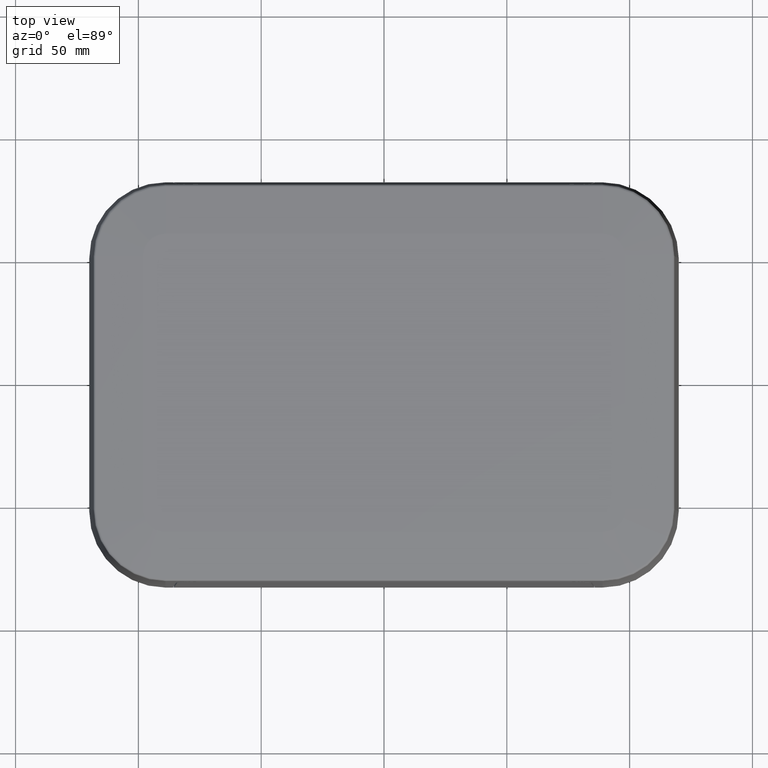
[diagram: clean part render]
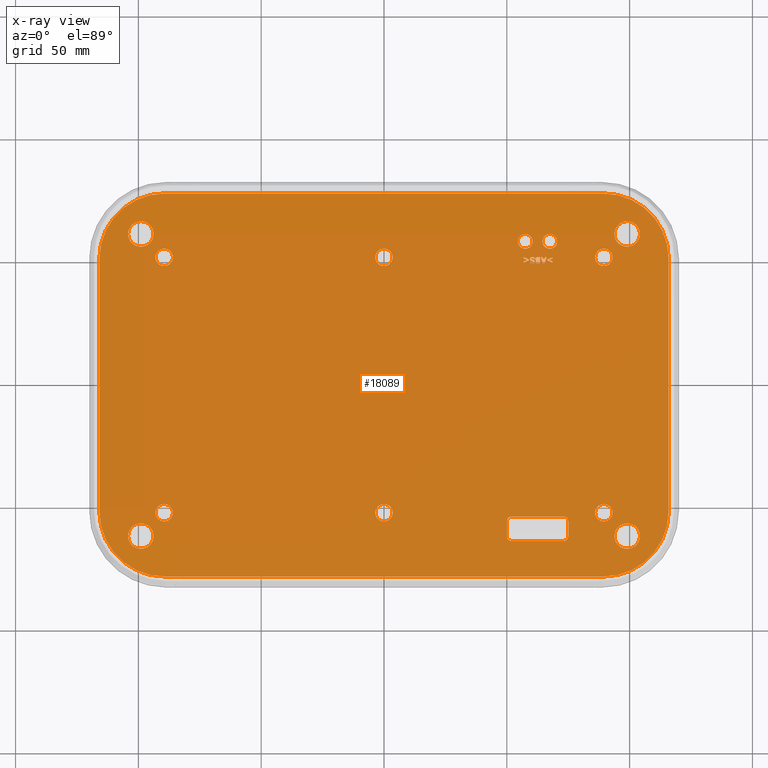
[diagram: x-ray — body ghosted, one internal face saturated and labeled with its STEP entity id]
A machine part, top view, then the same camera in x-ray: the body is ghosted and one INTERNAL B-rep face — a face not visible from any outside direction — is saturated and labeled: STEP entity #18089.
In plain terms, the highlighted planar face has unit normal (0, 0, 1).
Its self-contained STEP definition (entity closure, byte-faithful):
#15321=CARTESIAN_POINT('',(61.350081037277107,51.896677534429514,-3.5));
#15322=VERTEX_POINT('',#15321);
#15323=CARTESIAN_POINT('',(61.350081037277121,51.301053547395483,-3.5));
#15324=VERTEX_POINT('',#15323);
#15325=CARTESIAN_POINT('',(61.350081037277121,51.896677534429514,-3.5));
#15326=DIRECTION('',(0.0,-1.0,0.0));
#15327=VECTOR('',#15326,0.595623987034031);
#15328=LINE('',#15325,#15327);
#15329=EDGE_CURVE('',#15322,#15324,#15328,.T.);
#15361=CARTESIAN_POINT('',(61.293354943273869,51.301053547395483,-3.5));
#15362=VERTEX_POINT('',#15361);
#15363=CARTESIAN_POINT('',(61.350081037277121,51.301053547395483,-3.5));
#15364=DIRECTION('',(-1.0,0.0,0.0));
#15365=VECTOR('',#15364,0.056726094003253);
#15366=LINE('',#15363,#15365);
#15367=EDGE_CURVE('',#15324,#15362,#15366,.T.);
#15396=CARTESIAN_POINT('',(60.440437601296566,51.633306383700187,-3.5));
#15397=VERTEX_POINT('',#15396);
#15398=CARTESIAN_POINT('',(61.293354943273869,51.301053547395483,-3.5));
#15399=CARTESIAN_POINT('',(61.104943273905967,51.461102169761773,-3.5));
#15400=CARTESIAN_POINT('',(60.653160453808717,51.633306383700187,-3.5));
#15401=CARTESIAN_POINT('',(60.440437601296566,51.633306383700187,-3.5));
#15402=QUASI_UNIFORM_CURVE('',2,(#15398,#15399,#15400,#15401),.UNSPECIFIED.,.F.,.U.);
#15403=EDGE_CURVE('',#15362,#15397,#15402,.T.);
#15433=CARTESIAN_POINT('',(60.156807131280345,51.584684017411689,-3.5));
#15434=VERTEX_POINT('',#15433);
#15435=CARTESIAN_POINT('',(60.440437601296566,51.633306383700187,-3.5));
#15436=CARTESIAN_POINT('',(60.385737439222005,51.633306383700187,-3.5));
#15437=CARTESIAN_POINT('',(60.209481361426221,51.608995200555938,-3.5));
#15438=CARTESIAN_POINT('',(60.156807131280353,51.584684017411689,-3.5));
#15439=QUASI_UNIFORM_CURVE('',2,(#15435,#15436,#15437,#15438),.UNSPECIFIED.,.F.,.U.);
#15440=EDGE_CURVE('',#15397,#15434,#15439,.T.);
#15470=CARTESIAN_POINT('',(60.00081037277144,51.369935232970846,-3.5));
#15471=VERTEX_POINT('',#15470);
#15472=CARTESIAN_POINT('',(60.156807131280353,51.584684017411689,-3.5));
#15473=CARTESIAN_POINT('',(60.091977309562367,51.55632097041007,-3.5));
#15474=CARTESIAN_POINT('',(60.00081037277144,51.452998442047019,-3.5));
#15475=CARTESIAN_POINT('',(60.00081037277144,51.369935232970853,-3.5));
#15476=QUASI_UNIFORM_CURVE('',2,(#15472,#15473,#15474,#15475),.UNSPECIFIED.,.F.,.U.);
#15477=EDGE_CURVE('',#15434,#15471,#15476,.T.);
#15507=CARTESIAN_POINT('',(60.249999999999979,51.130875265385768,-3.5));
#15508=VERTEX_POINT('',#15507);
#15509=CARTESIAN_POINT('',(60.00081037277144,51.369935232970853,-3.5));
#15510=CARTESIAN_POINT('',(60.00081037277144,51.274716432322549,-3.5));
#15511=CARTESIAN_POINT('',(60.148703403565605,51.157212380458702,-3.5));
#15512=CARTESIAN_POINT('',(60.249999999999972,51.130875265385768,-3.5));
#15513=QUASI_UNIFORM_CURVE('',2,(#15509,#15510,#15511,#15512),.UNSPECIFIED.,.F.,.U.);
#15514=EDGE_CURVE('',#15471,#15508,#15513,.T.);
#15544=CARTESIAN_POINT('',(60.794975688816834,50.993111894235021,-3.5));
#15545=VERTEX_POINT('',#15544);
#15546=CARTESIAN_POINT('',(60.249999999999972,51.130875265385768,-3.5));
#15547=CARTESIAN_POINT('',(60.377633711507258,51.09643442259808,-3.5));
#15548=CARTESIAN_POINT('',(60.667341977309526,51.037682396666149,-3.5));
#15549=CARTESIAN_POINT('',(60.79497568881682,50.993111894235028,-3.5));
#15550=QUASI_UNIFORM_CURVE('',2,(#15546,#15547,#15548,#15549),.UNSPECIFIED.,.F.,.U.);
#15551=EDGE_CURVE('',#15508,#15545,#15550,.T.);
#15581=CARTESIAN_POINT('',(61.335899513776305,50.286061651123205,-3.5));
#15582=VERTEX_POINT('',#15581);
#15583=CARTESIAN_POINT('',(60.79497568881682,50.993111894235028,-3.5));
#15584=CARTESIAN_POINT('',(61.084683954619095,50.891815297800669,-3.5));
#15585=CARTESIAN_POINT('',(61.335899513776305,50.545380937995162,-3.5));
#15586=CARTESIAN_POINT('',(61.335899513776305,50.286061651123205,-3.5));
#15587=QUASI_UNIFORM_CURVE('',2,(#15583,#15584,#15585,#15586),.UNSPECIFIED.,.F.,.U.);
#15588=EDGE_CURVE('',#15545,#15582,#15587,.T.);
#15618=CARTESIAN_POINT('',(60.29659643435977,49.500000062792566,-3.5));
#15619=VERTEX_POINT('',#15618);
#15620=CARTESIAN_POINT('',(61.335899513776305,50.286061651123205,-3.5));
#15621=CARTESIAN_POINT('',(61.335899513776305,49.935575427460314,-3.5));
#15622=CARTESIAN_POINT('',(60.742301458670951,49.500000062792566,-3.5));
#15623=CARTESIAN_POINT('',(60.29659643435977,49.500000062792566,-3.5));
#15624=QUASI_UNIFORM_CURVE('',2,(#15620,#15621,#15622,#15623),.UNSPECIFIED.,.F.,.U.);
#15625=EDGE_CURVE('',#15582,#15619,#15624,.T.);
#15655=CARTESIAN_POINT('',(59.457860615883284,49.66815241287361,-3.5));
#15656=VERTEX_POINT('',#15655);
#15657=CARTESIAN_POINT('',(60.29659643435977,49.500000062792566,-3.5));
#15658=CARTESIAN_POINT('',(60.073743922204187,49.500000062792566,-3.5));
#15659=CARTESIAN_POINT('',(59.632090761750369,49.591166999583493,-3.5));
#15660=CARTESIAN_POINT('',(59.457860615883277,49.668152412873603,-3.5));
#15661=QUASI_UNIFORM_CURVE('',2,(#15657,#15658,#15659,#15660),.UNSPECIFIED.,.F.,.U.);
#15662=EDGE_CURVE('',#15619,#15656,#15661,.T.);
#15688=CARTESIAN_POINT('',(59.457860615883277,50.239465216763399,-3.5));
#15689=VERTEX_POINT('',#15688);
#15690=CARTESIAN_POINT('',(59.457860615883277,49.66815241287361,-3.5));
#15691=DIRECTION('',(0.0,1.0,0.0));
#15692=VECTOR('',#15691,0.571312803889789);
#15693=LINE('',#15690,#15692);
#15694=EDGE_CURVE('',#15656,#15689,#15693,.T.);
#15719=CARTESIAN_POINT('',(59.51256077795783,50.239465216763399,-3.5));
#15720=VERTEX_POINT('',#15719);
#15721=CARTESIAN_POINT('',(59.45786061588327,50.239465216763399,-3.5));
#15722=DIRECTION('',(1.0,0.0,0.0));
#15723=VECTOR('',#15722,0.05470016207456);
#15724=LINE('',#15721,#15723);
#15725=EDGE_CURVE('',#15689,#15720,#15724,.T.);
#15754=CARTESIAN_POINT('',(60.264181523500767,49.955834746747186,-3.5));
#15755=VERTEX_POINT('',#15754);
#15756=CARTESIAN_POINT('',(59.51256077795783,50.239465216763399,-3.5));
#15757=CARTESIAN_POINT('',(59.652350081037248,50.119935232970853,-3.5));
#15758=CARTESIAN_POINT('',(60.053484602917308,49.955834746747186,-3.5));
#15759=CARTESIAN_POINT('',(60.264181523500781,49.955834746747186,-3.5));
#15760=QUASI_UNIFORM_CURVE('',2,(#15756,#15757,#15758,#15759),.UNSPECIFIED.,.F.,.U.);
#15761=EDGE_CURVE('',#15720,#15755,#15760,.T.);
#15791=CARTESIAN_POINT('',(60.549837925445672,50.012560840750425,-3.5));
#15792=VERTEX_POINT('',#15791);
#15793=CARTESIAN_POINT('',(60.264181523500781,49.955834746747186,-3.5));
#15794=CARTESIAN_POINT('',(60.347244732576954,49.955834746747186,-3.5));
#15795=CARTESIAN_POINT('',(60.476904376012932,49.980145929891435,-3.5));
#15796=CARTESIAN_POINT('',(60.549837925445672,50.012560840750425,-3.5));
#15797=QUASI_UNIFORM_CURVE('',2,(#15793,#15794,#15795,#15796),.UNSPECIFIED.,.F.,.U.);
#15798=EDGE_CURVE('',#15755,#15792,#15797,.T.);
#15828=CARTESIAN_POINT('',(60.69367909238246,50.209076237833088,-3.5));
#15829=VERTEX_POINT('',#15828);
#15830=CARTESIAN_POINT('',(60.549837925445672,50.012560840750425,-3.5));
#15831=CARTESIAN_POINT('',(60.608589951377603,50.038897955823359,-3.5));
#15832=CARTESIAN_POINT('',(60.69367909238246,50.144246416115095,-3.5));
#15833=CARTESIAN_POINT('',(60.69367909238246,50.209076237833088,-3.5));
#15834=QUASI_UNIFORM_CURVE('',2,(#15830,#15831,#15832,#15833),.UNSPECIFIED.,.F.,.U.);
#15835=EDGE_CURVE('',#15792,#15829,#15834,.T.);
#15865=CARTESIAN_POINT('',(60.363452188006448,50.462317728918997,-3.5));
#15866=VERTEX_POINT('',#15865);
#15867=CARTESIAN_POINT('',(60.69367909238246,50.209076237833088,-3.5));
#15868=CARTESIAN_POINT('',(60.69367909238246,50.30632097041007,-3.5));
#15869=CARTESIAN_POINT('',(60.557941653160427,50.417747226487876,-3.5));
#15870=CARTESIAN_POINT('',(60.363452188006448,50.46231772891899,-3.5));
#15871=QUASI_UNIFORM_CURVE('',2,(#15867,#15868,#15869,#15870),.UNSPECIFIED.,.F.,.U.);
#15872=EDGE_CURVE('',#15829,#15866,#15871,.T.);
#15902=CARTESIAN_POINT('',(59.871150729335454,50.591977372354975,-3.5));
#15903=VERTEX_POINT('',#15902);
#15904=CARTESIAN_POINT('',(60.363452188006448,50.46231772891899,-3.5));
#15905=CARTESIAN_POINT('',(60.237844408427847,50.490680775920609,-3.5));
#15906=CARTESIAN_POINT('',(60.004862236628817,50.545380937995162,-3.5));
#15907=CARTESIAN_POINT('',(59.871150729335469,50.591977372354968,-3.5));
#15908=QUASI_UNIFORM_CURVE('',2,(#15904,#15905,#15906,#15907),.UNSPECIFIED.,.F.,.U.);
#15909=EDGE_CURVE('',#15866,#15903,#15908,.T.);
#15939=CARTESIAN_POINT('',(59.358589951377603,51.262560840750425,-3.5));
#15940=VERTEX_POINT('',#15939);
#15941=CARTESIAN_POINT('',(59.871150729335469,50.591977372354968,-3.5));
#15942=CARTESIAN_POINT('',(59.611831442463497,50.687196173003258,-3.5));
#15943=CARTESIAN_POINT('',(59.358589951377603,51.003241553878468,-3.5));
#15944=CARTESIAN_POINT('',(59.358589951377603,51.262560840750425,-3.5));
#15945=QUASI_UNIFORM_CURVE('',2,(#15941,#15942,#15943,#15944),.UNSPECIFIED.,.F.,.U.);
#15946=EDGE_CURVE('',#15903,#15940,#15945,.T.);
#15976=CARTESIAN_POINT('',(60.442463533225251,52.089141067654808,-3.5));
#15977=VERTEX_POINT('',#15976);
#15978=CARTESIAN_POINT('',(59.358589951377603,51.262560840750425,-3.5));
#15979=CARTESIAN_POINT('',(59.358589951377603,51.635332315628872,-3.5));
#15980=CARTESIAN_POINT('',(59.944084278768202,52.089141067654808,-3.5));
#15981=CARTESIAN_POINT('',(60.442463533225251,52.089141067654808,-3.5));
#15982=QUASI_UNIFORM_CURVE('',2,(#15978,#15979,#15980,#15981),.UNSPECIFIED.,.F.,.U.);
#15983=EDGE_CURVE('',#15940,#15977,#15982,.T.);
#16013=CARTESIAN_POINT('',(60.442463533225251,52.089141067654808,-3.5));
#16014=CARTESIAN_POINT('',(60.730145867098827,52.089141067654808,-3.5));
#16015=CARTESIAN_POINT('',(61.16369529983789,51.977714811577009,-3.5));
#16016=CARTESIAN_POINT('',(61.350081037277121,51.896677534429529,-3.5));
#16017=QUASI_UNIFORM_CURVE('',2,(#16013,#16014,#16015,#16016),.UNSPECIFIED.,.F.,.U.);
#16018=EDGE_CURVE('',#15977,#15322,#16017,.T.);
#16065=CARTESIAN_POINT('',(68.645461912479703,52.020259382079445,-3.5));
#16066=VERTEX_POINT('',#16065);
#16067=CARTESIAN_POINT('',(68.645461912479703,51.55632097041007,-3.5));
#16068=VERTEX_POINT('',#16067);
#16069=CARTESIAN_POINT('',(68.645461912479703,52.020259382079445,-3.5));
#16070=DIRECTION('',(0.0,-1.0,0.0));
#16071=VECTOR('',#16070,0.463938411669375);
#16072=LINE('',#16069,#16071);
#16073=EDGE_CURVE('',#16066,#16068,#16072,.T.);
#16105=CARTESIAN_POINT('',(67.140194489465117,50.940437664089167,-3.5));
#16106=VERTEX_POINT('',#16105);
#16107=CARTESIAN_POINT('',(68.645461912479703,51.55632097041007,-3.5));
#16108=DIRECTION('',(-0.925527112525927,-0.378681348866591,0.0));
#16109=VECTOR('',#16108,1.626389332784062);
#16110=LINE('',#16107,#16109);
#16111=EDGE_CURVE('',#16068,#16106,#16110,.T.);
#16136=CARTESIAN_POINT('',(68.645461912479703,50.324554357768257,-3.5));
#16137=VERTEX_POINT('',#16136);
#16138=CARTESIAN_POINT('',(67.140194489465117,50.940437664089167,-3.5));
#16139=DIRECTION('',(0.925527112525924,-0.378681348866598,0.0));
#16140=VECTOR('',#16139,1.626389332784051);
#16141=LINE('',#16138,#16140);
#16142=EDGE_CURVE('',#16106,#16137,#16141,.T.);
#16167=CARTESIAN_POINT('',(68.645461912479703,49.860615946098889,-3.5));
#16168=VERTEX_POINT('',#16167);
#16169=CARTESIAN_POINT('',(68.645461912479703,50.324554357768264,-3.5));
#16170=DIRECTION('',(0.0,-1.0,0.0));
#16171=VECTOR('',#16170,0.463938411669375);
#16172=LINE('',#16169,#16171);
#16173=EDGE_CURVE('',#16137,#16168,#16172,.T.);
#16198=CARTESIAN_POINT('',(66.489870340356532,50.756077858578628,-3.5));
#16199=VERTEX_POINT('',#16198);
#16200=CARTESIAN_POINT('',(68.645461912479703,49.860615946098889,-3.5));
#16201=DIRECTION('',(-0.923487255174439,0.383629104123214,0.0));
#16202=VECTOR('',#16201,2.334186595478258);
#16203=LINE('',#16200,#16202);
#16204=EDGE_CURVE('',#16168,#16199,#16203,.T.);
#16229=CARTESIAN_POINT('',(66.489870340356532,51.124797469599699,-3.5));
#16230=VERTEX_POINT('',#16229);
#16231=CARTESIAN_POINT('',(66.489870340356532,50.756077858578628,-3.5));
#16232=DIRECTION('',(0.0,1.0,0.0));
#16233=VECTOR('',#16232,0.368719611021071);
#16234=LINE('',#16231,#16233);
#16235=EDGE_CURVE('',#16199,#16230,#16234,.T.);
#16260=CARTESIAN_POINT('',(66.489870340356532,51.124797469599699,-3.5));
#16261=DIRECTION('',(0.923487255174439,0.383629104123216,0.0));
#16262=VECTOR('',#16261,2.334186595478244);
#16263=LINE('',#16260,#16262);
#16264=EDGE_CURVE('',#16230,#16066,#16263,.T.);
#16390=CARTESIAN_POINT('',(65.351296596434324,49.544570565223687,-3.5));
#16391=VERTEX_POINT('',#16390);
#16392=CARTESIAN_POINT('',(64.666531604538051,49.544570565223687,-3.5));
#16393=VERTEX_POINT('',#16392);
#16394=CARTESIAN_POINT('',(65.35129659643431,49.544570565223687,-3.5));
#16395=DIRECTION('',(-1.0,0.0,0.0));
#16396=VECTOR('',#16395,0.684764991896259);
#16397=LINE('',#16394,#16396);
#16398=EDGE_CURVE('',#16391,#16393,#16397,.T.);
#16430=CARTESIAN_POINT('',(63.821717990275488,52.044570565223687,-3.5));
#16431=VERTEX_POINT('',#16430);
#16432=CARTESIAN_POINT('',(64.666531604538051,49.544570565223687,-3.5));
#16433=DIRECTION('',(-0.320140459670987,0.947370089290162,0.0));
#16434=VECTOR('',#16433,2.638884242031729);
#16435=LINE('',#16432,#16434);
#16436=EDGE_CURVE('',#16393,#16431,#16435,.T.);
#16461=CARTESIAN_POINT('',(64.467990275526702,52.044570565223687,-3.5));
#16462=VERTEX_POINT('',#16461);
#16463=CARTESIAN_POINT('',(63.821717990275488,52.044570565223687,-3.5));
#16464=DIRECTION('',(1.0,0.0,0.0));
#16465=VECTOR('',#16464,0.646272285251229);
#16466=LINE('',#16463,#16465);
#16467=EDGE_CURVE('',#16431,#16462,#16466,.T.);
#16492=CARTESIAN_POINT('',(64.623987034035622,51.534035719194513,-3.5));
#16493=VERTEX_POINT('',#16492);
#16494=CARTESIAN_POINT('',(64.467990275526716,52.044570565223694,-3.5));
#16495=DIRECTION('',(0.292218535599005,-0.956351571051344,0.0));
#16496=VECTOR('',#16495,0.53383594640612);
#16497=LINE('',#16494,#16496);
#16498=EDGE_CURVE('',#16462,#16493,#16497,.T.);
#16523=CARTESIAN_POINT('',(65.410048622366247,51.534035719194513,-3.5));
#16524=VERTEX_POINT('',#16523);
#16525=CARTESIAN_POINT('',(64.623987034035622,51.534035719194513,-3.5));
#16526=DIRECTION('',(1.0,0.0,0.0));
#16527=VECTOR('',#16526,0.786061588330625);
#16528=LINE('',#16525,#16527);
#16529=EDGE_CURVE('',#16493,#16524,#16528,.T.);
#16554=CARTESIAN_POINT('',(65.568071312803852,52.044570565223687,-3.5));
#16555=VERTEX_POINT('',#16554);
#16556=CARTESIAN_POINT('',(65.410048622366261,51.534035719194506,-3.5));
#16557=DIRECTION('',(0.295683728071112,0.955285890691351,0.0));
#16558=VECTOR('',#16557,0.534431473346365);
#16559=LINE('',#16556,#16558);
#16560=EDGE_CURVE('',#16524,#16555,#16559,.T.);
#16585=CARTESIAN_POINT('',(66.196110210696887,52.044570565223687,-3.5));
#16586=VERTEX_POINT('',#16585);
#16587=CARTESIAN_POINT('',(65.568071312803852,52.044570565223687,-3.5));
#16588=DIRECTION('',(1.0,0.0,0.0));
#16589=VECTOR('',#16588,0.62803889789302);
#16590=LINE('',#16587,#16589);
#16591=EDGE_CURVE('',#16555,#16586,#16590,.T.);
#16616=CARTESIAN_POINT('',(66.196110210696887,52.044570565223694,-3.5));
#16617=DIRECTION('',(-0.320140459670986,-0.947370089290162,0.0));
#16618=VECTOR('',#16617,2.638884242031743);
#16619=LINE('',#16616,#16618);
#16620=EDGE_CURVE('',#16586,#16391,#16619,.T.);
#17145=CARTESIAN_POINT('',(61.834278768233361,51.83995144042629,-3.5));
#17146=VERTEX_POINT('',#17145);
#17147=CARTESIAN_POINT('',(62.573743922204187,52.044570565223687,-3.5));
#17148=VERTEX_POINT('',#17147);
#17149=CARTESIAN_POINT('',(61.834278768233361,51.839951440426276,-3.5));
#17150=CARTESIAN_POINT('',(61.976094003241464,51.951377696504075,-3.5));
#17151=CARTESIAN_POINT('',(62.312398703403531,52.044570565223687,-3.5));
#17152=CARTESIAN_POINT('',(62.573743922204187,52.044570565223687,-3.5));
#17153=QUASI_UNIFORM_CURVE('',2,(#17149,#17150,#17151,#17152),.UNSPECIFIED.,.F.,.U.);
#17154=EDGE_CURVE('',#17146,#17148,#17153,.T.);
#17187=CARTESIAN_POINT('',(63.572528363046963,52.044570565223687,-3.5));
#17188=VERTEX_POINT('',#17187);
#17189=CARTESIAN_POINT('',(62.573743922204187,52.044570565223687,-3.5));
#17190=DIRECTION('',(1.0,0.0,0.0));
#17191=VECTOR('',#17190,0.998784440842783);
#17192=LINE('',#17189,#17191);
#17193=EDGE_CURVE('',#17148,#17188,#17192,.T.);
#17218=CARTESIAN_POINT('',(63.572528363046963,49.544570565223687,-3.5));
#17219=VERTEX_POINT('',#17218);
#17220=CARTESIAN_POINT('',(63.572528363046963,52.044570565223687,-3.5));
#17221=DIRECTION('',(0.0,-1.0,0.0));
#17222=VECTOR('',#17221,2.5);
#17223=LINE('',#17220,#17222);
#17224=EDGE_CURVE('',#17188,#17219,#17223,.T.);
#17249=CARTESIAN_POINT('',(62.691247974068034,49.544570565223687,-3.5));
#17250=VERTEX_POINT('',#17249);
#17251=CARTESIAN_POINT('',(63.572528363046963,49.544570565223687,-3.5));
#17252=DIRECTION('',(-1.0,0.0,0.0));
#17253=VECTOR('',#17252,0.881280388978929);
#17254=LINE('',#17251,#17253);
#17255=EDGE_CURVE('',#17219,#17250,#17254,.T.);
#17284=CARTESIAN_POINT('',(62.008508914100453,49.6539708893728,-3.5));
#17285=VERTEX_POINT('',#17284);
#17286=CARTESIAN_POINT('',(62.691247974068034,49.544570565223687,-3.5));
#17287=CARTESIAN_POINT('',(62.415721231766582,49.544570565223687,-3.5));
#17288=CARTESIAN_POINT('',(62.132090761750369,49.587115135726123,-3.5));
#17289=CARTESIAN_POINT('',(62.008508914100453,49.653970889372793,-3.5));
#17290=QUASI_UNIFORM_CURVE('',2,(#17286,#17287,#17288,#17289),.UNSPECIFIED.,.F.,.U.);
#17291=EDGE_CURVE('',#17250,#17285,#17290,.T.);
#17321=CARTESIAN_POINT('',(61.741085899513742,50.126013028756901,-3.5));
#17322=VERTEX_POINT('',#17321);
#17323=CARTESIAN_POINT('',(62.008508914100453,49.653970889372793,-3.5));
#17324=CARTESIAN_POINT('',(61.872771474878412,49.724878506876848,-3.5));
#17325=CARTESIAN_POINT('',(61.741085899513742,49.967990338319311,-3.5));
#17326=CARTESIAN_POINT('',(61.741085899513742,50.126013028756908,-3.5));
#17327=QUASI_UNIFORM_CURVE('',2,(#17323,#17324,#17325,#17326),.UNSPECIFIED.,.F.,.U.);
#17328=EDGE_CURVE('',#17285,#17322,#17327,.T.);
#17358=CARTESIAN_POINT('',(62.085494327390556,50.660859057930338,-3.5));
#17359=VERTEX_POINT('',#17358);
#17360=CARTESIAN_POINT('',(61.741085899513742,50.126013028756908,-3.5));
#17361=CARTESIAN_POINT('',(61.741085899513742,50.308346902338755,-3.5));
#17362=CARTESIAN_POINT('',(61.923419773095596,50.59400330428366,-3.5));
#17363=CARTESIAN_POINT('',(62.085494327390563,50.660859057930338,-3.5));
#17364=QUASI_UNIFORM_CURVE('',2,(#17360,#17361,#17362,#17363),.UNSPECIFIED.,.F.,.U.);
#17365=EDGE_CURVE('',#17322,#17359,#17364,.T.);
#17391=CARTESIAN_POINT('',(62.085494327390563,50.673014649502463,-3.5));
#17392=VERTEX_POINT('',#17391);
#17393=CARTESIAN_POINT('',(62.085494327390563,50.660859057930338,-3.5));
#17394=DIRECTION('',(0.0,1.0,0.0));
#17395=VECTOR('',#17394,0.012155591572125);
#17396=LINE('',#17393,#17395);
#17397=EDGE_CURVE('',#17359,#17392,#17396,.T.);
#17426=CARTESIAN_POINT('',(61.57495948136139,51.278768296179926,-3.5));
#17427=VERTEX_POINT('',#17426);
#17428=CARTESIAN_POINT('',(62.085494327390563,50.673014649502463,-3.5));
#17429=CARTESIAN_POINT('',(61.85251215559154,50.721637015790947,-3.5));
#17430=CARTESIAN_POINT('',(61.57495948136139,51.023500873165339,-3.5));
#17431=CARTESIAN_POINT('',(61.57495948136139,51.278768296179926,-3.5));
#17432=QUASI_UNIFORM_CURVE('',2,(#17428,#17429,#17430,#17431),.UNSPECIFIED.,.F.,.U.);
#17433=EDGE_CURVE('',#17392,#17427,#17432,.T.);
#17463=CARTESIAN_POINT('',(61.57495948136139,51.278768296179926,-3.5));
#17464=CARTESIAN_POINT('',(61.57495948136139,51.465154033619143,-3.5));
#17465=CARTESIAN_POINT('',(61.7167747163695,51.746758571706664,-3.5));
#17466=CARTESIAN_POINT('',(61.834278768233361,51.839951440426276,-3.5));
#17467=QUASI_UNIFORM_CURVE('',2,(#17463,#17464,#17465,#17466),.UNSPECIFIED.,.F.,.U.);
#17468=EDGE_CURVE('',#17427,#17146,#17467,.T.);
#17523=CARTESIAN_POINT('',(58.991896272285224,51.124797469599699,-3.5));
#17524=VERTEX_POINT('',#17523);
#17525=CARTESIAN_POINT('',(58.991896272285224,50.756077858578628,-3.5));
#17526=VERTEX_POINT('',#17525);
#17527=CARTESIAN_POINT('',(58.991896272285224,51.124797469599699,-3.5));
#17528=DIRECTION('',(0.0,-1.0,0.0));
#17529=VECTOR('',#17528,0.368719611021071);
#17530=LINE('',#17527,#17529);
#17531=EDGE_CURVE('',#17524,#17526,#17530,.T.);
#17563=CARTESIAN_POINT('',(56.836304700162046,49.860615946098889,-3.5));
#17564=VERTEX_POINT('',#17563);
#17565=CARTESIAN_POINT('',(58.991896272285217,50.756077858578628,-3.5));
#17566=DIRECTION('',(-0.923487255174437,-0.383629104123219,0.0));
#17567=VECTOR('',#17566,2.334186595478247);
#17568=LINE('',#17565,#17567);
#17569=EDGE_CURVE('',#17526,#17564,#17568,.T.);
#17594=CARTESIAN_POINT('',(56.836304700162046,50.324554357768257,-3.5));
#17595=VERTEX_POINT('',#17594);
#17596=CARTESIAN_POINT('',(56.836304700162046,49.860615946098889,-3.5));
#17597=DIRECTION('',(0.0,1.0,0.0));
#17598=VECTOR('',#17597,0.463938411669368);
#17599=LINE('',#17596,#17598);
#17600=EDGE_CURVE('',#17564,#17595,#17599,.T.);
#17625=CARTESIAN_POINT('',(58.343598055105318,50.942463596017845,-3.5));
#17626=VERTEX_POINT('',#17625);
#17627=CARTESIAN_POINT('',(56.836304700162046,50.324554357768264,-3.5));
#17628=DIRECTION('',(0.92526936482464,0.379310693913323,0.0));
#17629=VECTOR('',#17628,1.629031947068667);
#17630=LINE('',#17627,#17629);
#17631=EDGE_CURVE('',#17595,#17626,#17630,.T.);
#17656=CARTESIAN_POINT('',(56.836304700162046,51.55632097041007,-3.5));
#17657=VERTEX_POINT('',#17656);
#17658=CARTESIAN_POINT('',(58.343598055105325,50.942463596017852,-3.5));
#17659=DIRECTION('',(-0.926140680196415,0.377178260886442,0.0));
#17660=VECTOR('',#17659,1.627499349908273);
#17661=LINE('',#17658,#17660);
#17662=EDGE_CURVE('',#17626,#17657,#17661,.T.);
#17687=CARTESIAN_POINT('',(56.836304700162046,52.020259382079445,-3.5));
#17688=VERTEX_POINT('',#17687);
#17689=CARTESIAN_POINT('',(56.836304700162046,51.55632097041007,-3.5));
#17690=DIRECTION('',(0.0,1.0,0.0));
#17691=VECTOR('',#17690,0.463938411669375);
#17692=LINE('',#17689,#17691);
#17693=EDGE_CURVE('',#17657,#17688,#17692,.T.);
#17718=CARTESIAN_POINT('',(56.836304700162046,52.020259382079438,-3.5));
#17719=DIRECTION('',(0.923487255174439,-0.383629104123216,0.0));
#17720=VECTOR('',#17719,2.334186595478244);
#17721=LINE('',#17718,#17720);
#17722=EDGE_CURVE('',#17688,#17524,#17721,.T.);
#17750=CARTESIAN_POINT('',(1.541741E-014,3.083481E-015,-3.5));
#17751=DIRECTION('',(0.0,0.0,1.0));
#17752=DIRECTION('',(1.0,0.0,0.0));
#17753=AXIS2_PLACEMENT_3D('',#17750,#17751,#17752);
#17754=PLANE('',#17753);
#17755=CARTESIAN_POINT('',(115.87747253462949,51.500000000000021,-3.5));
#17756=VERTEX_POINT('',#17755);
#17757=CARTESIAN_POINT('',(115.8774725346295,-51.500000000000021,-3.5));
#17758=VERTEX_POINT('',#17757);
#17759=CARTESIAN_POINT('',(115.87747253462949,51.500000000000014,-3.5));
#17760=DIRECTION('',(0.0,-1.0,0.0));
#17761=VECTOR('',#17760,103.00000000000003);
#17762=LINE('',#17759,#17761);
#17763=EDGE_CURVE('',#17756,#17758,#17762,.T.);
#17764=ORIENTED_EDGE('',*,*,#17763,.F.);
#17765=CARTESIAN_POINT('',(89.400000000000006,77.977472534629499,-3.5));
#17766=VERTEX_POINT('',#17765);
#17767=CARTESIAN_POINT('',(89.399999999999991,51.500000000000021,-3.5));
#17768=DIRECTION('',(0.0,0.0,-1.0));
#17769=DIRECTION('',(0.707106781186548,0.707106781186547,0.0));
#17770=AXIS2_PLACEMENT_3D('',#17767,#17768,#17769);
#17771=CIRCLE('',#17770,26.477472534629474);
#17772=EDGE_CURVE('',#17766,#17756,#17771,.T.);
#17773=ORIENTED_EDGE('',*,*,#17772,.F.);
#17774=CARTESIAN_POINT('',(-89.400000000000006,77.97747253462947,-3.5));
#17775=VERTEX_POINT('',#17774);
#17776=CARTESIAN_POINT('',(-89.40000000000002,77.97747253462947,-3.5));
#17777=DIRECTION('',(1.0,0.0,0.0));
#17778=VECTOR('',#17777,178.80000000000001);
#17779=LINE('',#17776,#17778);
#17780=EDGE_CURVE('',#17775,#17766,#17779,.T.);
#17781=ORIENTED_EDGE('',*,*,#17780,.F.);
#17782=CARTESIAN_POINT('',(-115.87747253462949,51.500000000000021,-3.5));
#17783=VERTEX_POINT('',#17782);
#17784=CARTESIAN_POINT('',(-89.400000000000006,51.500000000000021,-3.5));
#17785=DIRECTION('',(0.0,0.0,-1.0));
#17786=DIRECTION('',(-0.707106781186548,0.707106781186547,0.0));
#17787=AXIS2_PLACEMENT_3D('',#17784,#17785,#17786);
#17788=CIRCLE('',#17787,26.477472534629474);
#17789=EDGE_CURVE('',#17783,#17775,#17788,.T.);
#17790=ORIENTED_EDGE('',*,*,#17789,.F.);
#17791=CARTESIAN_POINT('',(-115.87747253462948,-51.500000000000043,-3.5));
#17792=VERTEX_POINT('',#17791);
#17793=CARTESIAN_POINT('',(-115.87747253462948,-51.50000000000005,-3.5));
#17794=DIRECTION('',(0.0,1.0,0.0));
#17795=VECTOR('',#17794,103.00000000000007);
#17796=LINE('',#17793,#17795);
#17797=EDGE_CURVE('',#17792,#17783,#17796,.T.);
#17798=ORIENTED_EDGE('',*,*,#17797,.F.);
#17799=CARTESIAN_POINT('',(-89.399999999999963,-77.977472534629499,-3.5));
#17800=VERTEX_POINT('',#17799);
#17801=CARTESIAN_POINT('',(-89.399999999999977,-51.500000000000028,-3.5));
#17802=DIRECTION('',(0.0,0.0,-1.0));
#17803=DIRECTION('',(-0.707106781186547,-0.707106781186548,0.0));
#17804=AXIS2_PLACEMENT_3D('',#17801,#17802,#17803);
#17805=CIRCLE('',#17804,26.477472534629474);
#17806=EDGE_CURVE('',#17800,#17792,#17805,.T.);
#17807=ORIENTED_EDGE('',*,*,#17806,.F.);
#17808=CARTESIAN_POINT('',(89.399999999999977,-77.97747253462947,-3.5));
#17809=VERTEX_POINT('',#17808);
#17810=CARTESIAN_POINT('',(89.399999999999977,-77.977472534629484,-3.5));
#17811=DIRECTION('',(-1.0,0.0,0.0));
#17812=VECTOR('',#17811,178.79999999999995);
#17813=LINE('',#17810,#17812);
#17814=EDGE_CURVE('',#17809,#17800,#17813,.T.);
#17815=ORIENTED_EDGE('',*,*,#17814,.F.);
#17816=CARTESIAN_POINT('',(89.399999999999991,-51.500000000000014,-3.5));
#17817=DIRECTION('',(0.0,0.0,-1.0));
#17818=DIRECTION('',(0.707106781186547,-0.707106781186548,0.0));
#17819=AXIS2_PLACEMENT_3D('',#17816,#17817,#17818);
#17820=CIRCLE('',#17819,26.477472534629477);
#17821=EDGE_CURVE('',#17758,#17809,#17820,.T.);
#17822=ORIENTED_EDGE('',*,*,#17821,.F.);
#17823=EDGE_LOOP('',(#17764,#17773,#17781,#17790,#17798,#17807,#17815,#17822));
#17824=FACE_OUTER_BOUND('',#17823,.T.);
#17825=CARTESIAN_POINT('',(93.049999999999983,52.000000000000028,-3.5));
#17826=VERTEX_POINT('',#17825);
#17827=CARTESIAN_POINT('',(89.499999999999972,52.000000000000028,-3.5));
#17828=DIRECTION('',(0.0,0.0,1.0));
#17829=DIRECTION('',(-1.0,0.0,0.0));
#17830=AXIS2_PLACEMENT_3D('',#17827,#17828,#17829);
#17831=CIRCLE('',#17830,3.55);
#17832=EDGE_CURVE('',#17826,#17826,#17831,.T.);
#17833=ORIENTED_EDGE('',*,*,#17832,.F.);
#17834=EDGE_LOOP('',(#17833));
#17835=FACE_BOUND('',#17834,.T.);
#17836=CARTESIAN_POINT('',(3.55,52.000000000000014,-3.5));
#17837=VERTEX_POINT('',#17836);
#17838=CARTESIAN_POINT('',(0.0,52.000000000000014,-3.5));
#17839=DIRECTION('',(0.0,0.0,1.0));
#17840=DIRECTION('',(-1.0,0.0,0.0));
#17841=AXIS2_PLACEMENT_3D('',#17838,#17839,#17840);
#17842=CIRCLE('',#17841,3.55);
#17843=EDGE_CURVE('',#17837,#17837,#17842,.T.);
#17844=ORIENTED_EDGE('',*,*,#17843,.F.);
#17845=EDGE_LOOP('',(#17844));
#17846=FACE_BOUND('',#17845,.T.);
#17847=CARTESIAN_POINT('',(3.55,-52.000000000000014,-3.5));
#17848=VERTEX_POINT('',#17847);
#17849=CARTESIAN_POINT('',(0.0,-52.000000000000014,-3.5));
#17850=DIRECTION('',(0.0,0.0,1.0));
#17851=DIRECTION('',(-1.0,0.0,0.0));
#17852=AXIS2_PLACEMENT_3D('',#17849,#17850,#17851);
#17853=CIRCLE('',#17852,3.55);
#17854=EDGE_CURVE('',#17848,#17848,#17853,.T.);
#17855=ORIENTED_EDGE('',*,*,#17854,.F.);
#17856=EDGE_LOOP('',(#17855));
#17857=FACE_BOUND('',#17856,.T.);
#17858=CARTESIAN_POINT('',(-93.812296431256812,61.5,-3.5));
#17859=VERTEX_POINT('',#17858);
#17860=CARTESIAN_POINT('',(-99.0,61.5,-3.5));
#17861=DIRECTION('',(0.0,0.0,1.0));
#17862=DIRECTION('',(-1.0,0.0,0.0));
#17863=AXIS2_PLACEMENT_3D('',#17860,#17861,#17862);
#17864=CIRCLE('',#17863,5.187703568743185);
#17865=EDGE_CURVE('',#17859,#17859,#17864,.T.);
#17866=ORIENTED_EDGE('',*,*,#17865,.F.);
#17867=EDGE_LOOP('',(#17866));
#17868=FACE_BOUND('',#17867,.T.);
#17869=CARTESIAN_POINT('',(104.18770356874319,-61.5,-3.5));
#17870=VERTEX_POINT('',#17869);
#17871=CARTESIAN_POINT('',(99.0,-61.5,-3.5));
#17872=DIRECTION('',(0.0,0.0,1.0));
#17873=DIRECTION('',(-1.0,0.0,0.0));
#17874=AXIS2_PLACEMENT_3D('',#17871,#17872,#17873);
#17875=CIRCLE('',#17874,5.187703568743185);
#17876=EDGE_CURVE('',#17870,#17870,#17875,.T.);
#17877=ORIENTED_EDGE('',*,*,#17876,.F.);
#17878=EDGE_LOOP('',(#17877));
#17879=FACE_BOUND('',#17878,.T.);
#17880=CARTESIAN_POINT('',(104.18770356874316,61.500000000000043,-3.5));
#17881=VERTEX_POINT('',#17880);
#17882=CARTESIAN_POINT('',(98.999999999999972,61.500000000000043,-3.5));
#17883=DIRECTION('',(0.0,0.0,1.0));
#17884=DIRECTION('',(-1.0,0.0,0.0));
#17885=AXIS2_PLACEMENT_3D('',#17882,#17883,#17884);
#17886=CIRCLE('',#17885,5.187703568743185);
#17887=EDGE_CURVE('',#17881,#17881,#17886,.T.);
#17888=ORIENTED_EDGE('',*,*,#17887,.F.);
#17889=EDGE_LOOP('',(#17888));
#17890=FACE_BOUND('',#17889,.T.);
#17891=CARTESIAN_POINT('',(-93.812296431256812,-61.500000000000043,-3.5));
#17892=VERTEX_POINT('',#17891);
#17893=CARTESIAN_POINT('',(-99.0,-61.500000000000043,-3.5));
#17894=DIRECTION('',(0.0,0.0,1.0));
#17895=DIRECTION('',(-1.0,0.0,0.0));
#17896=AXIS2_PLACEMENT_3D('',#17893,#17894,#17895);
#17897=CIRCLE('',#17896,5.187703568743185);
#17898=EDGE_CURVE('',#17892,#17892,#17897,.T.);
#17899=ORIENTED_EDGE('',*,*,#17898,.F.);
#17900=EDGE_LOOP('',(#17899));
#17901=FACE_BOUND('',#17900,.T.);
#17902=CARTESIAN_POINT('',(93.049999999999997,-51.999999999999986,-3.5));
#17903=VERTEX_POINT('',#17902);
#17904=CARTESIAN_POINT('',(89.5,-51.999999999999986,-3.5));
#17905=DIRECTION('',(0.0,0.0,1.0));
#17906=DIRECTION('',(-1.0,0.0,0.0));
#17907=AXIS2_PLACEMENT_3D('',#17904,#17905,#17906);
#17908=CIRCLE('',#17907,3.55);
#17909=EDGE_CURVE('',#17903,#17903,#17908,.T.);
#17910=ORIENTED_EDGE('',*,*,#17909,.F.);
#17911=EDGE_LOOP('',(#17910));
#17912=FACE_BOUND('',#17911,.T.);
#17913=CARTESIAN_POINT('',(-85.949999999999989,-52.000000000000028,-3.5));
#17914=VERTEX_POINT('',#17913);
#17915=CARTESIAN_POINT('',(-89.5,-52.000000000000028,-3.5));
#17916=DIRECTION('',(0.0,0.0,1.0));
#17917=DIRECTION('',(-1.0,0.0,0.0));
#17918=AXIS2_PLACEMENT_3D('',#17915,#17916,#17917);
#17919=CIRCLE('',#17918,3.55);
#17920=EDGE_CURVE('',#17914,#17914,#17919,.T.);
#17921=ORIENTED_EDGE('',*,*,#17920,.F.);
#17922=EDGE_LOOP('',(#17921));
#17923=FACE_BOUND('',#17922,.T.);
#17924=CARTESIAN_POINT('',(-85.949999999999989,51.999999999999993,-3.5));
#17925=VERTEX_POINT('',#17924);
#17926=CARTESIAN_POINT('',(-89.5,51.999999999999993,-3.5));
#17927=DIRECTION('',(0.0,0.0,1.0));
#17928=DIRECTION('',(-1.0,0.0,0.0));
#17929=AXIS2_PLACEMENT_3D('',#17926,#17927,#17928);
#17930=CIRCLE('',#17929,3.55);
#17931=EDGE_CURVE('',#17925,#17925,#17930,.T.);
#17932=ORIENTED_EDGE('',*,*,#17931,.F.);
#17933=EDGE_LOOP('',(#17932));
#17934=FACE_BOUND('',#17933,.T.);
#17935=CARTESIAN_POINT('',(75.0,-61.499999999999986,-3.5));
#17936=VERTEX_POINT('',#17935);
#17937=CARTESIAN_POINT('',(73.0,-63.5,-3.5));
#17938=VERTEX_POINT('',#17937);
#17939=CARTESIAN_POINT('',(73.0,-61.499999999999986,-3.5));
#17940=DIRECTION('',(0.0,0.0,-1.0));
#17941=DIRECTION('',(0.0,1.0,0.0));
#17942=AXIS2_PLACEMENT_3D('',#17939,#17940,#17941);
#17943=CIRCLE('',#17942,2.00000000000002);
#17944=EDGE_CURVE('',#17936,#17938,#17943,.T.);
#17945=ORIENTED_EDGE('',*,*,#17944,.T.);
#17946=CARTESIAN_POINT('',(52.000000000000014,-63.5,-3.5));
#17947=VERTEX_POINT('',#17946);
#17948=CARTESIAN_POINT('',(73.0,-63.5,-3.5));
#17949=DIRECTION('',(-1.0,0.0,0.0));
#17950=VECTOR('',#17949,20.999999999999986);
#17951=LINE('',#17948,#17950);
#17952=EDGE_CURVE('',#17938,#17947,#17951,.T.);
#17953=ORIENTED_EDGE('',*,*,#17952,.T.);
#17954=CARTESIAN_POINT('',(50.000000000000007,-61.499999999999993,-3.5));
#17955=VERTEX_POINT('',#17954);
#17956=CARTESIAN_POINT('',(52.000000000000014,-61.499999999999993,-3.5));
#17957=DIRECTION('',(0.0,0.0,-1.0));
#17958=DIRECTION('',(1.0,0.0,0.0));
#17959=AXIS2_PLACEMENT_3D('',#17956,#17957,#17958);
#17960=CIRCLE('',#17959,2.000000000000011);
#17961=EDGE_CURVE('',#17947,#17955,#17960,.T.);
#17962=ORIENTED_EDGE('',*,*,#17961,.T.);
#17963=CARTESIAN_POINT('',(50.000000000000014,-55.5,-3.5));
#17964=VERTEX_POINT('',#17963);
#17965=CARTESIAN_POINT('',(50.000000000000014,-61.499999999999993,-3.5));
#17966=DIRECTION('',(0.0,1.0,0.0));
#17967=VECTOR('',#17966,5.999999999999993);
#17968=LINE('',#17965,#17967);
#17969=EDGE_CURVE('',#17955,#17964,#17968,.T.);
#17970=ORIENTED_EDGE('',*,*,#17969,.T.);
#17971=CARTESIAN_POINT('',(52.000000000000014,-53.5,-3.5));
#17972=VERTEX_POINT('',#17971);
#17973=CARTESIAN_POINT('',(52.000000000000014,-55.5,-3.5));
#17974=DIRECTION('',(0.0,0.0,-1.0));
#17975=DIRECTION('',(0.0,-1.0,0.0));
#17976=AXIS2_PLACEMENT_3D('',#17973,#17974,#17975);
#17977=CIRCLE('',#17976,2.000000000000006);
#17978=EDGE_CURVE('',#17964,#17972,#17977,.T.);
#17979=ORIENTED_EDGE('',*,*,#17978,.T.);
#17980=CARTESIAN_POINT('',(73.0,-53.499999999999986,-3.5));
#17981=VERTEX_POINT('',#17980);
#17982=CARTESIAN_POINT('',(52.000000000000014,-53.499999999999993,-3.5));
#17983=DIRECTION('',(1.0,0.0,0.0));
#17984=VECTOR('',#17983,20.999999999999986);
#17985=LINE('',#17982,#17984);
#17986=EDGE_CURVE('',#17972,#17981,#17985,.T.);
#17987=ORIENTED_EDGE('',*,*,#17986,.T.);
#17988=CARTESIAN_POINT('',(75.0,-55.499999999999986,-3.5));
#17989=VERTEX_POINT('',#17988);
#17990=CARTESIAN_POINT('',(73.0,-55.499999999999986,-3.5));
#17991=DIRECTION('',(0.0,0.0,-1.0));
#17992=DIRECTION('',(-1.0,0.0,0.0));
#17993=AXIS2_PLACEMENT_3D('',#17990,#17991,#17992);
#17994=CIRCLE('',#17993,2.000000000000011);
#17995=EDGE_CURVE('',#17981,#17989,#17994,.T.);
#17996=ORIENTED_EDGE('',*,*,#17995,.T.);
#17997=CARTESIAN_POINT('',(75.0,-55.499999999999986,-3.5));
#17998=DIRECTION('',(0.0,-1.0,0.0));
#17999=VECTOR('',#17998,6.0);
#18000=LINE('',#17997,#17999);
#18001=EDGE_CURVE('',#17989,#17936,#18000,.T.);
#18002=ORIENTED_EDGE('',*,*,#18001,.T.);
#18003=EDGE_LOOP('',(#17945,#17953,#17962,#17970,#17979,#17987,#17996,#18002));
#18004=FACE_BOUND('',#18003,.T.);
#18005=CARTESIAN_POINT('',(70.499999999999957,58.500000000000007,-3.5));
#18006=VERTEX_POINT('',#18005);
#18007=CARTESIAN_POINT('',(67.499999999999972,58.500000000000007,-3.5));
#18008=DIRECTION('',(0.0,0.0,-1.0));
#18009=DIRECTION('',(-1.0,0.0,0.0));
#18010=AXIS2_PLACEMENT_3D('',#18007,#18008,#18009);
#18011=CIRCLE('',#18010,3.0);
#18012=EDGE_CURVE('',#18006,#18006,#18011,.T.);
#18013=ORIENTED_EDGE('',*,*,#18012,.T.);
#18014=EDGE_LOOP('',(#18013));
#18015=FACE_BOUND('',#18014,.T.);
#18016=CARTESIAN_POINT('',(60.499999999999964,58.500000000000007,-3.5));
#18017=VERTEX_POINT('',#18016);
#18018=CARTESIAN_POINT('',(57.499999999999964,58.500000000000007,-3.5));
#18019=DIRECTION('',(0.0,0.0,-1.0));
#18020=DIRECTION('',(-1.0,0.0,0.0));
#18021=AXIS2_PLACEMENT_3D('',#18018,#18019,#18020);
#18022=CIRCLE('',#18021,3.0);
#18023=EDGE_CURVE('',#18017,#18017,#18022,.T.);
#18024=ORIENTED_EDGE('',*,*,#18023,.T.);
#18025=EDGE_LOOP('',(#18024));
#18026=FACE_BOUND('',#18025,.T.);
#18027=ORIENTED_EDGE('',*,*,#17531,.T.);
#18028=ORIENTED_EDGE('',*,*,#17569,.T.);
#18029=ORIENTED_EDGE('',*,*,#17600,.T.);
#18030=ORIENTED_EDGE('',*,*,#17631,.T.);
#18031=ORIENTED_EDGE('',*,*,#17662,.T.);
#18032=ORIENTED_EDGE('',*,*,#17693,.T.);
#18033=ORIENTED_EDGE('',*,*,#17722,.T.);
#18034=EDGE_LOOP('',(#18027,#18028,#18029,#18030,#18031,#18032,#18033));
#18035=FACE_BOUND('',#18034,.T.);
#18036=ORIENTED_EDGE('',*,*,#17154,.T.);
#18037=ORIENTED_EDGE('',*,*,#17193,.T.);
#18038=ORIENTED_EDGE('',*,*,#17224,.T.);
#18039=ORIENTED_EDGE('',*,*,#17255,.T.);
#18040=ORIENTED_EDGE('',*,*,#17291,.T.);
#18041=ORIENTED_EDGE('',*,*,#17328,.T.);
#18042=ORIENTED_EDGE('',*,*,#17365,.T.);
#18043=ORIENTED_EDGE('',*,*,#17397,.T.);
#18044=ORIENTED_EDGE('',*,*,#17433,.T.);
#18045=ORIENTED_EDGE('',*,*,#17468,.T.);
#18046=EDGE_LOOP('',(#18036,#18037,#18038,#18039,#18040,#18041,#18042,#18043,#18044,#18045));
#18047=FACE_BOUND('',#18046,.T.);
#18048=ORIENTED_EDGE('',*,*,#16398,.T.);
#18049=ORIENTED_EDGE('',*,*,#16436,.T.);
#18050=ORIENTED_EDGE('',*,*,#16467,.T.);
#18051=ORIENTED_EDGE('',*,*,#16498,.T.);
#18052=ORIENTED_EDGE('',*,*,#16529,.T.);
#18053=ORIENTED_EDGE('',*,*,#16560,.T.);
#18054=ORIENTED_EDGE('',*,*,#16591,.T.);
#18055=ORIENTED_EDGE('',*,*,#16620,.T.);
#18056=EDGE_LOOP('',(#18048,#18049,#18050,#18051,#18052,#18053,#18054,#18055));
#18057=FACE_BOUND('',#18056,.T.);
#18058=ORIENTED_EDGE('',*,*,#16073,.T.);
#18059=ORIENTED_EDGE('',*,*,#16111,.T.);
#18060=ORIENTED_EDGE('',*,*,#16142,.T.);
#18061=ORIENTED_EDGE('',*,*,#16173,.T.);
#18062=ORIENTED_EDGE('',*,*,#16204,.T.);
#18063=ORIENTED_EDGE('',*,*,#16235,.T.);
#18064=ORIENTED_EDGE('',*,*,#16264,.T.);
#18065=EDGE_LOOP('',(#18058,#18059,#18060,#18061,#18062,#18063,#18064));
#18066=FACE_BOUND('',#18065,.T.);
#18067=ORIENTED_EDGE('',*,*,#15329,.T.);
#18068=ORIENTED_EDGE('',*,*,#15367,.T.);
#18069=ORIENTED_EDGE('',*,*,#15403,.T.);
#18070=ORIENTED_EDGE('',*,*,#15440,.T.);
#18071=ORIENTED_EDGE('',*,*,#15477,.T.);
#18072=ORIENTED_EDGE('',*,*,#15514,.T.);
#18073=ORIENTED_EDGE('',*,*,#15551,.T.);
#18074=ORIENTED_EDGE('',*,*,#15588,.T.);
#18075=ORIENTED_EDGE('',*,*,#15625,.T.);
#18076=ORIENTED_EDGE('',*,*,#15662,.T.);
#18077=ORIENTED_EDGE('',*,*,#15694,.T.);
#18078=ORIENTED_EDGE('',*,*,#15725,.T.);
#18079=ORIENTED_EDGE('',*,*,#15761,.T.);
#18080=ORIENTED_EDGE('',*,*,#15798,.T.);
#18081=ORIENTED_EDGE('',*,*,#15835,.T.);
#18082=ORIENTED_EDGE('',*,*,#15872,.T.);
#18083=ORIENTED_EDGE('',*,*,#15909,.T.);
#18084=ORIENTED_EDGE('',*,*,#15946,.T.);
#18085=ORIENTED_EDGE('',*,*,#15983,.T.);
#18086=ORIENTED_EDGE('',*,*,#16018,.T.);
#18087=EDGE_LOOP('',(#18067,#18068,#18069,#18070,#18071,#18072,#18073,#18074,#18075,#18076,#18077,#18078,#18079,#18080,#18081,#18082,#18083,#18084,#18085,#18086));
#18088=FACE_BOUND('',#18087,.T.);
#18089=ADVANCED_FACE('',(#17824,#17835,#17846,#17857,#17868,#17879,#17890,#17901,#17912,#17923,#17934,#18004,#18015,#18026,#18035,#18047,#18057,#18066,#18088),#17754,.T.);